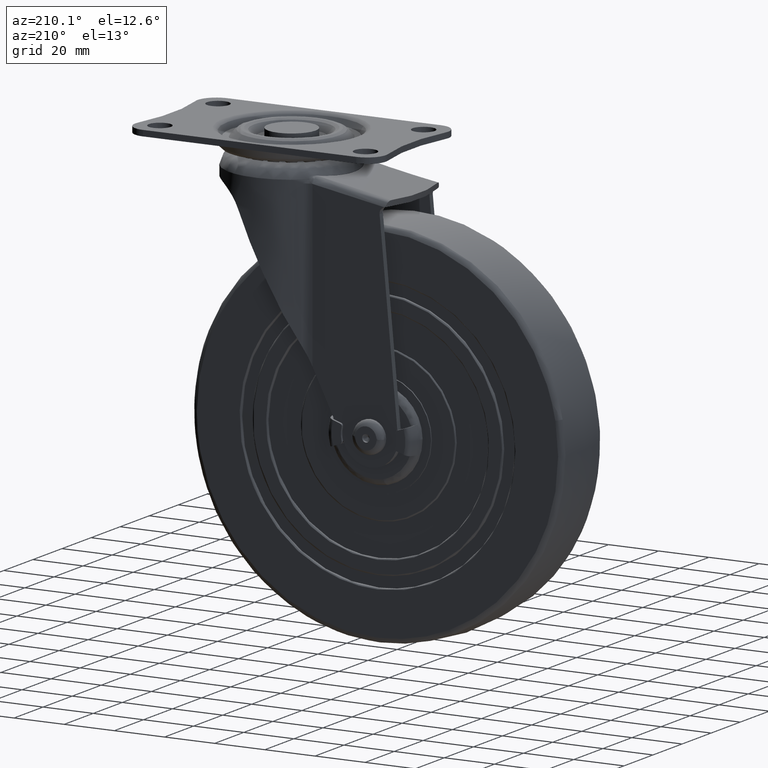
[diagram: clean part render]
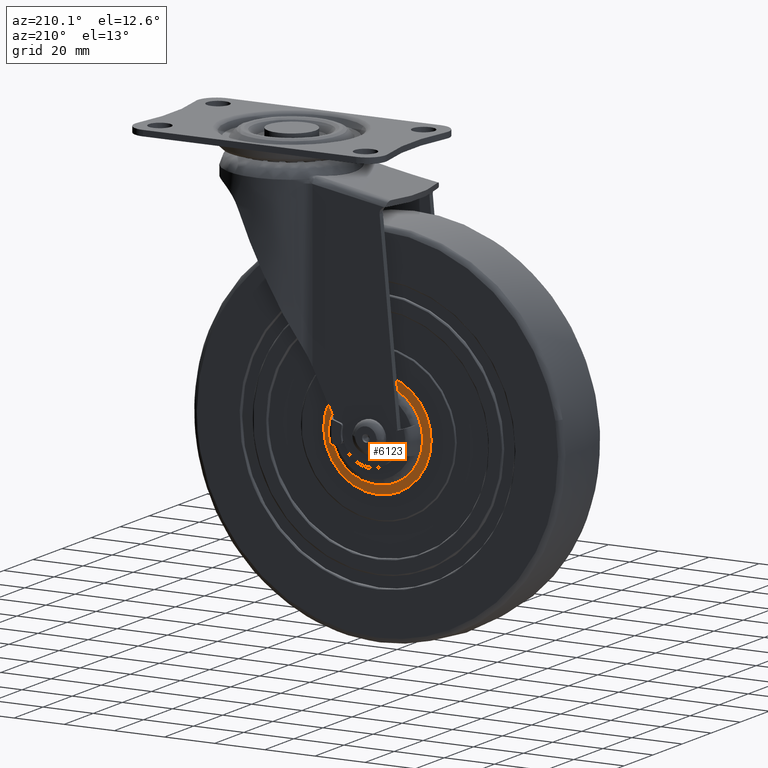
[diagram: same view with one face highlighted and labeled with its STEP entity id]
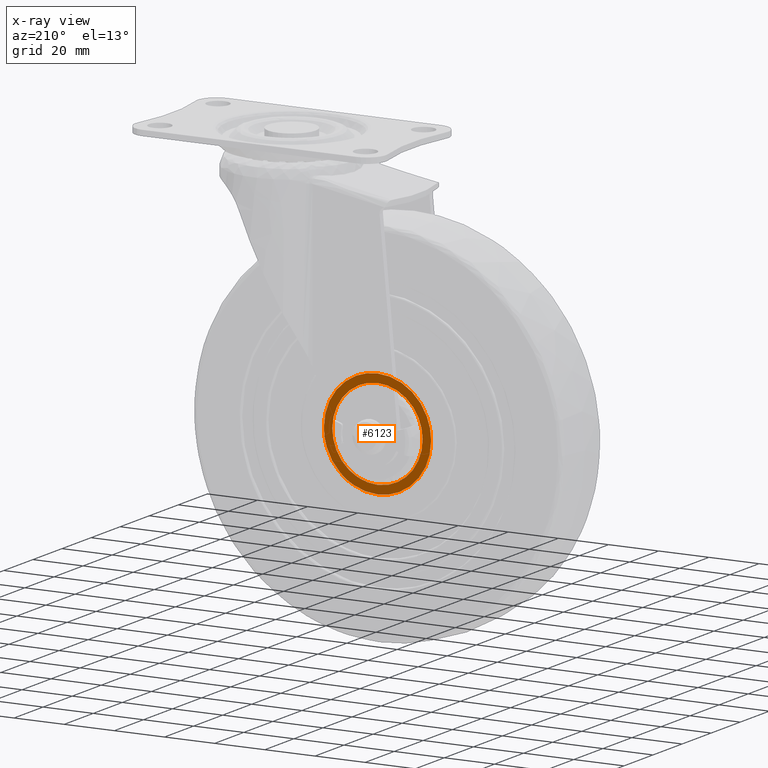
[diagram: x-ray of the same camera — body ghosted, the highlighted face saturated]
A machine part, auxiliary view. The second image highlights one B-rep face of the part: STEP entity #6123.
The next image is the same camera in x-ray: the body ghosted, the highlighted face saturated — about 0% of this face is hidden behind the body in this view.
In plain terms, the highlighted face is a freeform B-spline surface patch.
Its self-contained STEP definition (entity closure, byte-faithful):
#289=CARTESIAN_POINT('',(16.340091502855859,13.500000000211990,13.818880445317211));
#290=VERTEX_POINT('',#289);
#291=CARTESIAN_POINT('',(0.0,13.500000000000000,21.399999999999999));
#292=VERTEX_POINT('',#291);
#293=CARTESIAN_POINT('',(16.340091502855859,13.500000000211990,13.818880445317211));
#294=CARTESIAN_POINT('',(15.027510509800660,13.500000000194960,15.372215118484910));
#295=CARTESIAN_POINT('',(12.466840241116810,13.500000000161799,17.644706199698330));
#296=CARTESIAN_POINT('',(8.172429923807883,13.500000000105979,19.928103527053011));
#297=CARTESIAN_POINT('',(4.163881197031763,13.500000000054140,21.132313872421381));
#298=CARTESIAN_POINT('',(1.355695885750119,13.500000000017531,21.400147201909569));
#299=CARTESIAN_POINT('',(0.0,13.500000000000000,21.399999999999999));
#300=B_SPLINE_CURVE_WITH_KNOTS('',3,(#293,#294,#295,#296,#297,#298,#299),.UNSPECIFIED.,.F.,.U.,(4,1,1,1,4),(0.000000022875390,6.100679029141336,10.167758792805881,14.525396169278761,18.592497806145960),.UNSPECIFIED.);
#301=EDGE_CURVE('',#290,#292,#300,.T.);
#303=CARTESIAN_POINT('',(-21.399999999999530,13.500000000000000,-0.000004462280174));
#304=VERTEX_POINT('',#303);
#305=CARTESIAN_POINT('',(0.0,13.500000000000000,21.399999999999999));
#306=CARTESIAN_POINT('',(-1.137989227369341,13.500000000000011,21.400043912113190));
#307=CARTESIAN_POINT('',(-3.764192010639985,13.499999999999970,21.190182332870339));
#308=CARTESIAN_POINT('',(-7.332938881249659,13.500000000000041,20.226193363777920));
#309=CARTESIAN_POINT('',(-10.427502995001619,13.499999999999959,18.762267980006801));
#310=CARTESIAN_POINT('',(-13.294746807264239,13.500000000000000,16.897191715916520));
#311=CARTESIAN_POINT('',(-15.823889309457300,13.499999999999989,14.576421995974590));
#312=CARTESIAN_POINT('',(-18.215604565371741,13.499999999999970,11.432846045381609));
#313=CARTESIAN_POINT('',(-20.038762435686738,13.500000000000030,7.919376342739504));
#314=CARTESIAN_POINT('',(-21.166390548998091,13.500000000000000,3.939230611854899));
#315=CARTESIAN_POINT('',(-21.400067144615139,13.500000000000000,1.225524206216878));
#316=CARTESIAN_POINT('',(-21.399999999999530,13.500000000000000,-0.000004462280174));
#317=B_SPLINE_CURVE_WITH_KNOTS('',3,(#305,#306,#307,#308,#309,#310,#311,#312,#313,#314,#315,#316),.UNSPECIFIED.,.F.,.U.,(4,1,1,1,1,1,1,1,1,4),(0.000000118282898,3.414005411149013,7.878571120669303,11.030013125301441,13.656266540898949,18.120642072758550,21.272116336369791,25.474066293722441,29.938645119108141,33.615254828560722),.UNSPECIFIED.);
#318=EDGE_CURVE('',#292,#304,#317,.T.);
#320=CARTESIAN_POINT('',(0.0,13.500000000000000,-21.399999999999999));
#321=VERTEX_POINT('',#320);
#322=CARTESIAN_POINT('',(-21.399999999999530,13.500000000000000,-0.000004462280174));
#323=CARTESIAN_POINT('',(-21.400243626841561,13.499999999999989,-1.488175632030620));
#324=CARTESIAN_POINT('',(-21.143198199187658,13.500000000000030,-3.939149875138156));
#325=CARTESIAN_POINT('',(-20.043119082892119,13.499999999999950,-7.822393831363961));
#326=CARTESIAN_POINT('',(-18.420606487343381,13.500000000000060,-11.146680783053890));
#327=CARTESIAN_POINT('',(-16.363339452156030,13.500000000000069,-13.884869618362000));
#328=CARTESIAN_POINT('',(-14.221063047549739,13.499999999999879,-16.080421825117298));
#329=CARTESIAN_POINT('',(-11.589068564747310,13.500000000000099,-18.134658259828260));
#330=CARTESIAN_POINT('',(-8.465880327526138,13.500000000000041,-19.755018754255978));
#331=CARTESIAN_POINT('',(-4.551756011139636,13.499999999999840,-21.047989529621589));
#332=CARTESIAN_POINT('',(-1.838395374489356,13.500000000000330,-21.400626745739711));
#333=CARTESIAN_POINT('',(0.0,13.500000000000000,-21.399999999999999));
#334=B_SPLINE_CURVE_WITH_KNOTS('',3,(#322,#323,#324,#325,#326,#327,#328,#329,#330,#331,#332,#333),.UNSPECIFIED.,.F.,.U.,(4,1,1,1,1,1,1,1,1,4),(0.000000119825309,4.464480332642150,7.353334824771345,12.080527803375890,15.494615930499091,17.595396928133379,21.272113154697870,25.474062481329121,28.100280142518969,33.615249798499470),.UNSPECIFIED.);
#335=EDGE_CURVE('',#304,#321,#334,.T.);
#337=CARTESIAN_POINT('',(14.730787099505710,13.499999999551219,-15.523010782321579));
#338=VERTEX_POINT('',#337);
#339=CARTESIAN_POINT('',(0.0,13.500000000000000,-21.399999999999999));
#340=CARTESIAN_POINT('',(2.115680059373480,13.499999999935550,-21.401062582570841));
#341=CARTESIAN_POINT('',(5.415262864935743,13.499999999835049,-20.906394217044411));
#342=CARTESIAN_POINT('',(9.279760081781030,13.499999999717220,-19.364338823087870));
#343=CARTESIAN_POINT('',(12.145569785845280,13.499999999630139,-17.716006580980121));
#344=CARTESIAN_POINT('',(13.810132266802640,13.499999999579170,-16.396843500188069));
#345=CARTESIAN_POINT('',(14.730787099505710,13.499999999551219,-15.523010782321579));
#346=B_SPLINE_CURVE_WITH_KNOTS('',3,(#339,#340,#341,#342,#343,#344,#345),.UNSPECIFIED.,.F.,.U.,(4,1,1,1,4),(0.000000043242656,6.346635412231942,9.900729403082746,12.439391870127110,16.247364772100799),.UNSPECIFIED.);
#347=EDGE_CURVE('',#321,#338,#346,.T.);
#436=CARTESIAN_POINT('',(21.399999999999530,13.500000000000000,0.000004462280184));
#437=VERTEX_POINT('',#436);
#438=CARTESIAN_POINT('',(21.399999999999530,13.500000000000000,0.000004462280184));
#439=CARTESIAN_POINT('',(21.400191124687211,13.500000000021600,1.408395518528059));
#440=CARTESIAN_POINT('',(21.159625349265600,13.500000000058840,3.833857500124558));
#441=CARTESIAN_POINT('',(20.118410439709081,13.500000000116779,7.615276431730517));
#442=CARTESIAN_POINT('',(18.563229865743281,13.500000000166970,10.882773162347981));
#443=CARTESIAN_POINT('',(17.047446766453909,13.500000000199160,12.982496784929250));
#444=CARTESIAN_POINT('',(16.340091502855859,13.500000000211990,13.818880445317211));
#445=B_SPLINE_CURVE_WITH_KNOTS('',3,(#438,#439,#440,#441,#442,#443,#444),.UNSPECIFIED.,.F.,.U.,(4,1,1,1,4),(0.000000042378774,4.225152273131053,7.276678049152968,11.736531273633821,15.022758043385270),.UNSPECIFIED.);
#446=EDGE_CURVE('',#437,#290,#445,.T.);
#473=CARTESIAN_POINT('',(14.730787099505710,13.499999999551219,-15.523010782321579));
#474=CARTESIAN_POINT('',(16.240695771118698,13.499999999592580,-14.091464515269051));
#475=CARTESIAN_POINT('',(17.989996760028280,13.499999999657080,-11.861889759797860));
#476=CARTESIAN_POINT('',(19.750803585254570,13.499999999757510,-8.387927490814718));
#477=CARTESIAN_POINT('',(20.999791249990789,13.499999999858829,-4.884397201510693));
#478=CARTESIAN_POINT('',(21.400658282149099,13.499999999945061,-1.899673137636591));
#479=CARTESIAN_POINT('',(21.399999999999530,13.500000000000000,0.000004462280184));
#480=B_SPLINE_CURVE_WITH_KNOTS('',3,(#473,#474,#475,#476,#477,#478,#479),.UNSPECIFIED.,.F.,.U.,(4,1,1,1,4),(0.000000036892487,6.241599820537832,8.412588617644296,11.669051060445240,17.367891831550718),.UNSPECIFIED.);
#481=EDGE_CURVE('',#338,#437,#480,.T.);
#2382=CARTESIAN_POINT('',(-4.433393002157079,13.500000002446731,-17.445504821836298));
#2383=VERTEX_POINT('',#2382);
#2384=CARTESIAN_POINT('',(0.0,13.500000000000000,-18.000017000000000));
#2385=VERTEX_POINT('',#2384);
#2386=CARTESIAN_POINT('',(-4.433393002157079,13.500000002446731,-17.445504821836298));
#2387=CARTESIAN_POINT('',(-2.986258316079375,13.500000000823160,-17.813462382219701));
#2388=CARTESIAN_POINT('',(-1.493193729296159,13.499999999998749,-18.000296386023969));
#2389=CARTESIAN_POINT('',(0.0,13.500000000000000,-18.000017000000000));
#2390=B_SPLINE_CURVE_WITH_KNOTS('',3,(#2386,#2387,#2388,#2389),.UNSPECIFIED.,.F.,.U.,(4,4),(4.792108E-009,4.479531980032832),.UNSPECIFIED.);
#2391=EDGE_CURVE('',#2383,#2385,#2390,.T.);
#2521=CARTESIAN_POINT('',(-17.998595794326128,13.500000003227150,0.226188931547981));
#2522=VERTEX_POINT('',#2521);
#2530=CARTESIAN_POINT('',(0.0,13.500000000000000,18.000017000000000));
#2531=VERTEX_POINT('',#2530);
#2532=CARTESIAN_POINT('',(0.0,13.500000000000000,18.000017000000000));
#2533=CARTESIAN_POINT('',(-1.168667516937085,13.499999999999980,18.000171328623999));
#2534=CARTESIAN_POINT('',(-3.432916776448557,13.500000000040179,17.778713762118439));
#2535=CARTESIAN_POINT('',(-6.529035990145192,13.500000000205540,16.868048775683281));
#2536=CARTESIAN_POINT('',(-9.620219208796554,13.500000000481171,15.349996374418630));
#2537=CARTESIAN_POINT('',(-12.661371906691260,13.500000000901929,13.032346315938790));
#2538=CARTESIAN_POINT('',(-15.027138891419551,13.500000001431010,10.119077643964539));
#2539=CARTESIAN_POINT('',(-16.604505903187640,13.500000001971250,7.142246174803806));
#2540=CARTESIAN_POINT('',(-17.670693944785700,13.500000002538350,4.020431460921398));
#2541=CARTESIAN_POINT('',(-17.981445409458399,13.500000002975220,1.613897542295533));
#2542=CARTESIAN_POINT('',(-17.998595794326128,13.500000003227150,0.226188931547981));
#2543=B_SPLINE_CURVE_WITH_KNOTS('',3,(#2532,#2533,#2534,#2535,#2536,#2537,#2538,#2539,#2540,#2541,#2542),.UNSPECIFIED.,.F.,.U.,(4,1,1,1,1,1,1,1,4),(0.000000195907685,3.505990778887561,6.792957118632486,9.641649268016924,13.805095177296771,18.187563090933839,20.817123371934340,23.884945385679512,28.048338887040529),.UNSPECIFIED.);
#2544=EDGE_CURVE('',#2531,#2522,#2543,.T.);
#2546=CARTESIAN_POINT('',(18.000016999999840,13.500000000000000,0.000002379027893));
#2547=VERTEX_POINT('',#2546);
#2548=CARTESIAN_POINT('',(18.000016999999840,13.500000000000000,0.000002379027893));
#2549=CARTESIAN_POINT('',(18.000057984152939,13.500000000000011,1.104448164150007));
#2550=CARTESIAN_POINT('',(17.769149598757551,13.500000000000020,3.607977764485261));
#2551=CARTESIAN_POINT('',(16.759193897906830,13.499999999999989,6.865027913874229));
#2552=CARTESIAN_POINT('',(15.088478861046539,13.499999999999980,9.990509733308343));
#2553=CARTESIAN_POINT('',(13.298279311754330,13.499999999999980,12.255697629329569));
#2554=CARTESIAN_POINT('',(11.111759370043821,13.499999999999959,14.237188183242241));
#2555=CARTESIAN_POINT('',(8.481912791321477,13.500000000000041,16.018354389756521));
#2556=CARTESIAN_POINT('',(4.712168586644640,13.500000000000011,17.579716002166659));
#2557=CARTESIAN_POINT('',(1.619931049928367,13.500000000000000,18.000563506300040));
#2558=CARTESIAN_POINT('',(0.0,13.500000000000000,18.000017000000000));
#2559=B_SPLINE_CURVE_WITH_KNOTS('',3,(#2548,#2549,#2550,#2551,#2552,#2553,#2554,#2555,#2556,#2557,#2558),.UNSPECIFIED.,.F.,.U.,(4,1,1,1,1,1,1,1,4),(0.000000203984779,3.313400309164020,7.510425593696379,10.161208666942660,13.916431339592609,16.125260435893789,18.996922205804012,23.414882872429960,28.274536654594961),.UNSPECIFIED.);
#2560=EDGE_CURVE('',#2547,#2531,#2559,.T.);
#2562=CARTESIAN_POINT('',(0.0,13.500000000000000,-18.000017000000000));
#2563=CARTESIAN_POINT('',(1.399021355832532,13.500000000000000,-18.000316138863489));
#2564=CARTESIAN_POINT('',(3.975943296434567,13.500000000000011,-17.698015532320980));
#2565=CARTESIAN_POINT('',(7.544110945542725,13.499999999999940,-16.470568902724018));
#2566=CARTESIAN_POINT('',(10.612350700932939,13.500000000000020,-14.682312650672090));
#2567=CARTESIAN_POINT('',(13.051038410820830,13.500000000000201,-12.525817664118900));
#2568=CARTESIAN_POINT('',(15.173314656435601,13.499999999999829,-9.874309094879001));
#2569=CARTESIAN_POINT('',(16.709855830695950,13.500000000000110,-6.999617636564379));
#2570=CARTESIAN_POINT('',(17.760966065079572,13.499999999999851,-3.534215477279495));
#2571=CARTESIAN_POINT('',(18.000177122985811,13.500000000000121,-1.251719227315493));
#2572=CARTESIAN_POINT('',(18.000016999999840,13.500000000000000,0.000002379027893));
#2573=B_SPLINE_CURVE_WITH_KNOTS('',3,(#2562,#2563,#2564,#2565,#2566,#2567,#2568,#2569,#2570,#2571,#2572),.UNSPECIFIED.,.F.,.U.,(4,1,1,1,1,1,1,1,4),(0.000000203163356,4.196990594688906,7.731327297450001,11.265699391951911,14.799862857883490,17.450675657671660,21.426802688904051,24.519372297515570,28.274539336330669),.UNSPECIFIED.);
#2574=EDGE_CURVE('',#2385,#2547,#2573,.T.);
#2596=CARTESIAN_POINT('',(-17.998595794326128,13.500000003227150,0.226188931547981));
#2597=CARTESIAN_POINT('',(-18.023165117716189,13.500000002540469,-1.650421403048056));
#2598=CARTESIAN_POINT('',(-17.576866233210879,13.500000001617350,-4.720838061749796));
#2599=CARTESIAN_POINT('',(-16.085880940116400,13.500000000958240,-8.253758290750783));
#2600=CARTESIAN_POINT('',(-14.552269736280371,13.500000000709960,-10.695196856806250));
#2601=CARTESIAN_POINT('',(-13.013315927063561,13.500000000687800,-12.516353981799300));
#2602=CARTESIAN_POINT('',(-10.826148618336051,13.500000000877961,-14.488442042361450));
#2603=CARTESIAN_POINT('',(-8.065546669148764,13.500000001382620,-16.245538238244212));
#2604=CARTESIAN_POINT('',(-5.645986853584120,13.500000002057799,-17.137525547877839));
#2605=CARTESIAN_POINT('',(-4.433393002157079,13.500000002446731,-17.445504821836298));
#2606=B_SPLINE_CURVE_WITH_KNOTS('',3,(#2596,#2597,#2598,#2599,#2600,#2601,#2602,#2603,#2604,#2605),.UNSPECIFIED.,.F.,.U.,(4,1,1,1,1,1,1,4),(0.000000178129618,5.629961373292520,9.195633782881243,11.447607835167039,14.262547183733441,16.326867984783309,20.267903152026001,24.021177427373988),.UNSPECIFIED.);
#2607=EDGE_CURVE('',#2522,#2383,#2606,.T.);
#6103=CARTESIAN_POINT('',(-23.537859515269009,13.500000000000000,23.537859515269520));
#6104=CARTESIAN_POINT('',(-23.537859515269009,13.500000000000000,-23.537861045916792));
#6105=CARTESIAN_POINT('',(23.537861045916280,13.500000000000000,23.537859515269520));
#6106=CARTESIAN_POINT('',(23.537861045916280,13.500000000000000,-23.537861045916792));
#6107=B_SPLINE_SURFACE_WITH_KNOTS('',1,1,((#6103,#6105),(#6104,#6106)),.UNSPECIFIED.,.F.,.F.,.U.,(2,2),(2,2),(0.0,47.075720561186301),(0.0,47.075720561185292),.UNSPECIFIED.);
#6108=ORIENTED_EDGE('',*,*,#335,.F.);
#6109=ORIENTED_EDGE('',*,*,#318,.F.);
#6110=ORIENTED_EDGE('',*,*,#301,.F.);
#6111=ORIENTED_EDGE('',*,*,#446,.F.);
#6112=ORIENTED_EDGE('',*,*,#481,.F.);
#6113=ORIENTED_EDGE('',*,*,#347,.F.);
#6114=EDGE_LOOP('',(#6108,#6109,#6110,#6111,#6112,#6113));
#6115=FACE_OUTER_BOUND('',#6114,.T.);
#6116=ORIENTED_EDGE('',*,*,#2544,.T.);
#6117=ORIENTED_EDGE('',*,*,#2607,.T.);
#6118=ORIENTED_EDGE('',*,*,#2391,.T.);
#6119=ORIENTED_EDGE('',*,*,#2574,.T.);
#6120=ORIENTED_EDGE('',*,*,#2560,.T.);
#6121=EDGE_LOOP('',(#6116,#6117,#6118,#6119,#6120));
#6122=FACE_BOUND('',#6121,.T.);
#6123=ADVANCED_FACE('',(#6115,#6122),#6107,.F.);